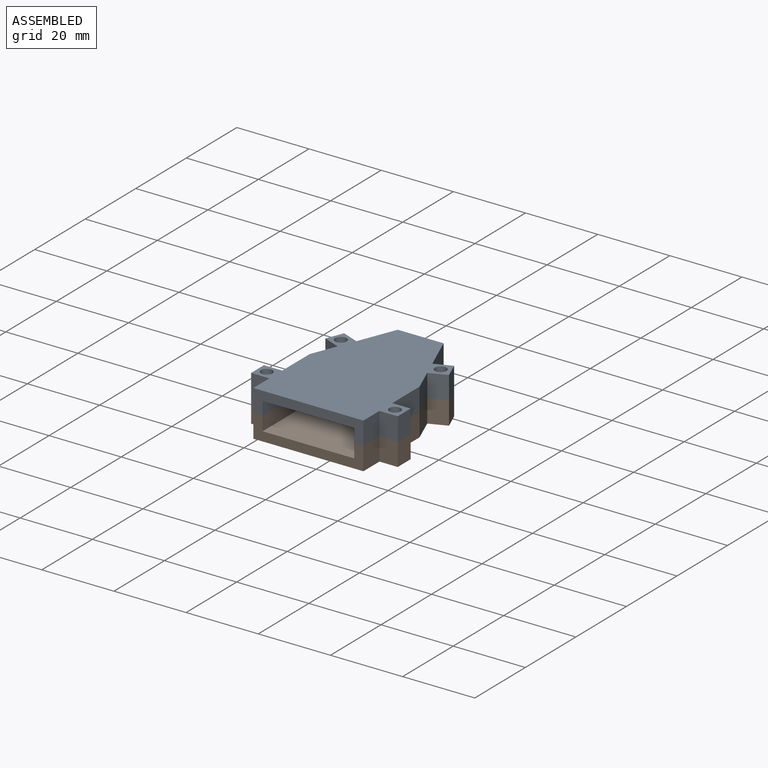
[diagram: assembled view]
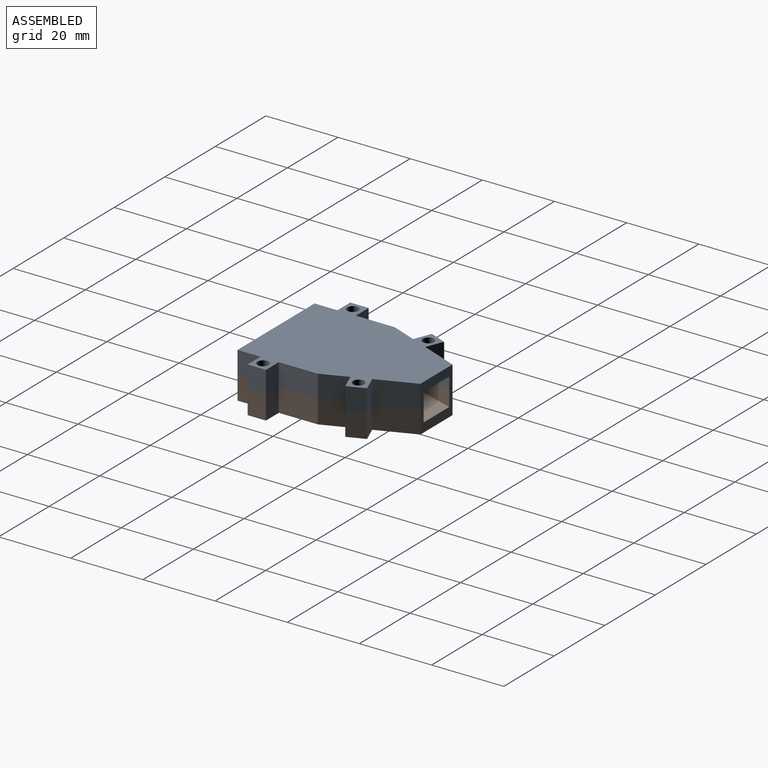
[diagram: assembled view, second angle]
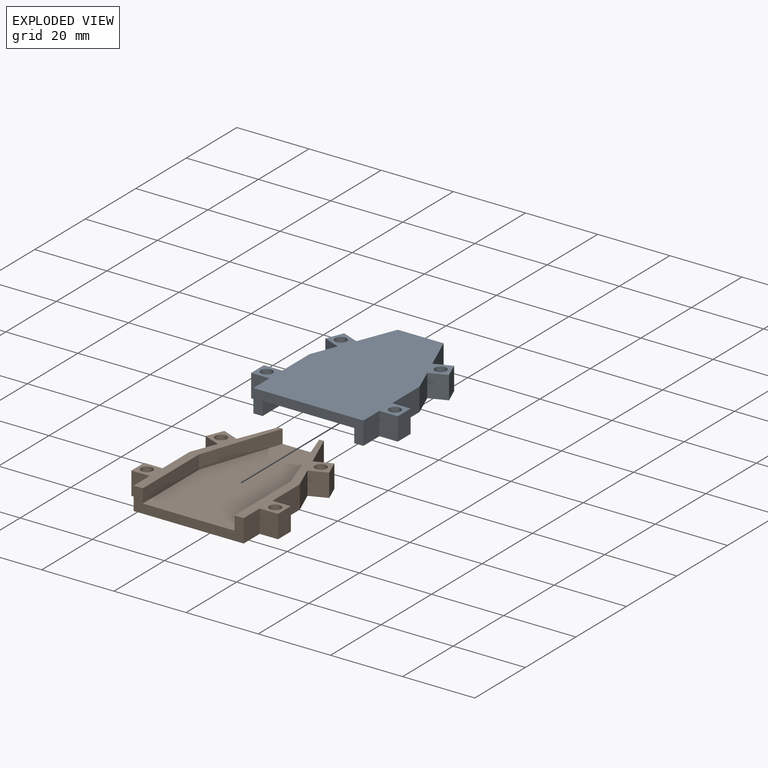
[diagram: exploded view]
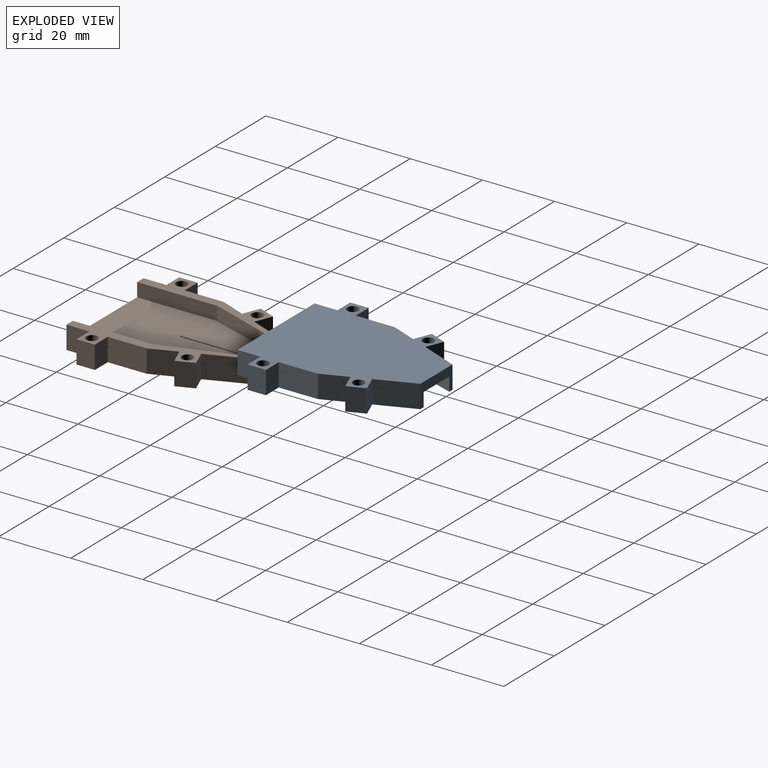
[diagram: exploded view, second angle]
ASSEMBLY  parts=2 mates=3
PART A: 34 faces, bbox 40.6x44.5x6.4 mm
  f0: plane 7.08x6.35mm, normal (-0.93,0.37,0), area 48.4mm2, adj f4,f6,f11,f27
  f1: plane 7.08x6.35mm, normal (0.93,0.37,0), area 48.4mm2, adj f8,f11,f12,f24
  f2: plane 6.35x6.35mm, normal (1,0,0), area 40.3mm2, adj f7,f11,f12,f21
  f3: plane 6.35x6.35mm, normal (-1,0,0), area 40.3mm2, adj f4,f7,f11,f18
  f4: plane 44.45x15.24mm, normal (0,0,-1), area 134.6mm2, adj f0,f3,f5,f6,f7,f10,f13,f14
  f5: plane 12.7x6.35mm, normal (0,1,0), area 41.9mm2, adj f4,f9,f10,f11,f12,f14,f15,f17
  f6: plane 10.8x6.35mm, normal (-1,0,0), area 68.5mm2, adj f0,f4,f11,f20
  f7: plane 30.48x6.35mm, normal (0,-1,0), area 96.8mm2, adj f2,f3,f4,f11,f12,f13,f16,f17
  f8: plane 10.8x6.35mm, normal (1,0,0), area 68.5mm2, adj f1,f11,f12,f22
  f9: plane 10.43x6.35mm, normal (0.93,0.37,0), area 71.4mm2, adj f5,f11,f12,f25
  f10: plane 10.43x6.35mm, normal (-0.93,0.37,0), area 71.4mm2, adj f4,f5,f11,f29
  f11: plane 44.45x40.64mm, normal (0,0,1), area 1228.8mm2, adj f0,f1,f2,f3,f5,f6,f7,f8
  f12: plane 44.45x15.24mm, normal (0,0,-1), area 134.6mm2, adj f1,f2,f5,f7,f8,f9,f15,f16
  f13: plane 22.23x3.81mm, normal (1,0,0), area 84.7mm2, adj f4,f7,f14,f17
  f14: plane 22.23x7.62mm, normal (0.95,-0.32,0), area 89.5mm2, adj f4,f5,f13,f17
  f15: plane 22.23x7.62mm, normal (-0.95,-0.32,0), area 89.5mm2, adj f5,f12,f16,f17
  f16: plane 22.23x3.81mm, normal (-1,0,0), area 84.7mm2, adj f7,f12,f15,f17
  f17: plane 44.45x25.4mm, normal (0,0,-1), area 959.7mm2, adj f5,f7,f13,f14,f15,f16
  f18: plane 6.35x5.08mm, normal (0,-1,0), area 32.3mm2, adj f3,f4,f11,f19
  f19: plane 6.35x5.08mm, normal (-1,0,0), area 32.3mm2, adj f4,f11,f18,f20
  f20: plane 6.35x5.08mm, normal (0,1,0), area 32.3mm2, adj f4,f6,f11,f19
  f21: plane 6.35x5.08mm, normal (0,-1,0), area 32.3mm2, adj f2,f11,f12,f23
  f22: plane 6.35x5.08mm, normal (0,1,0), area 32.3mm2, adj f8,f11,f12,f23
  f23: plane 6.35x5.08mm, normal (1,0,0), area 32.3mm2, adj f11,f12,f21,f22
  f24: plane 6.35x4.72mm, normal (0.37,-0.93,0), area 32.3mm2, adj f1,f11,f12,f26
  f25: plane 6.35x4.72mm, normal (-0.37,0.93,0), area 32.3mm2, adj f9,f11,f12,f26
  f26: plane 6.35x4.72mm, normal (0.93,0.37,0), area 32.3mm2, adj f11,f12,f24,f25
  f27: plane 6.35x4.72mm, normal (-0.37,-0.93,0), area 32.3mm2, adj f0,f4,f11,f28
  f28: plane 6.35x4.72mm, normal (-0.93,0.37,0), area 32.3mm2, adj f4,f11,f27,f29
  f29: plane 6.35x4.72mm, normal (0.37,0.93,0), area 32.3mm2, adj f4,f10,f11,f28
  f30: cylinder r=1.59mm len=6.35mm, axis (0,0,-1), area 63.3mm2, adj f11,f12
  f31: cylinder r=1.59mm len=6.35mm, axis (0,0,-1), area 63.3mm2, adj f11,f12
  f32: cylinder r=1.59mm len=6.35mm, axis (0,0,-1), area 63.3mm2, adj f4,f11
  f33: cylinder r=1.59mm len=6.35mm, axis (0,0,-1), area 63.3mm2, adj f4,f11
PART B: same geometry as A
PLACE A t=(-24.65,-14.17,-3.08)mm fixed
PLACE B rot(axis=(0,1,0),180deg) t=(-24.65,-14.17,-3.08)mm
MATE planar B.f7 <-> A.f7  axis (0,-1,0) through (-11.95,-36.4,-6.89)mm
MATE planar B.f3 <-> A.f2  axis (1,0,0) through (-9.41,-30.05,-3.08)mm
MATE planar A.f12 <-> B.f4  axis (0,0,-1) through (-11.35,-16.12,-3.08)mm
